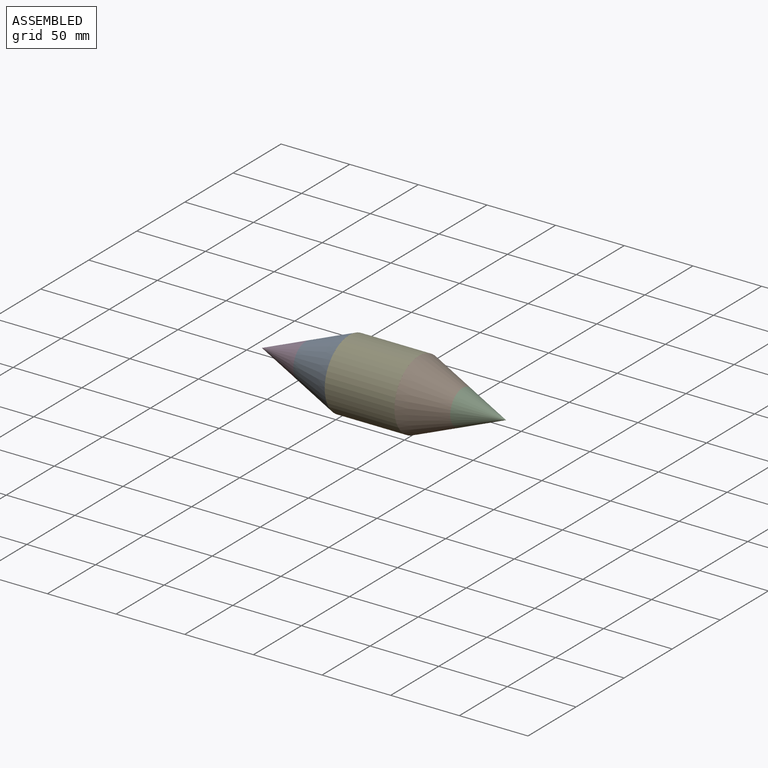
[diagram: assembled view]
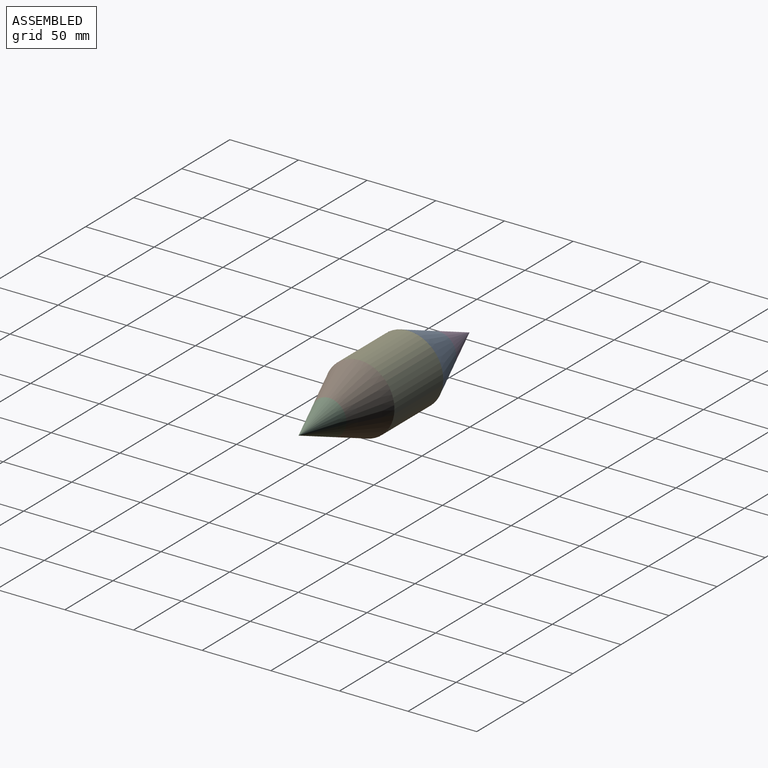
[diagram: assembled view, second angle]
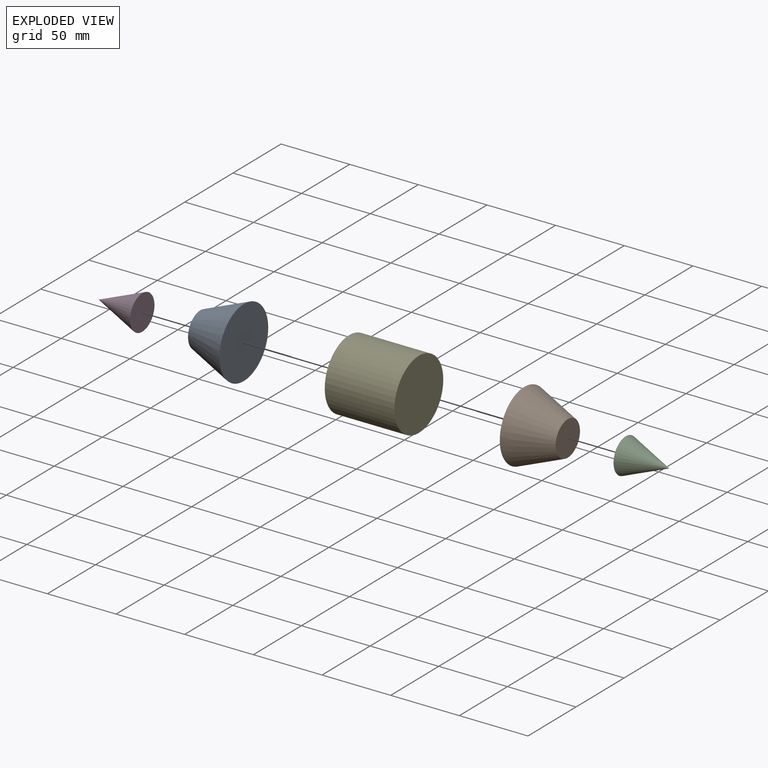
[diagram: exploded view]
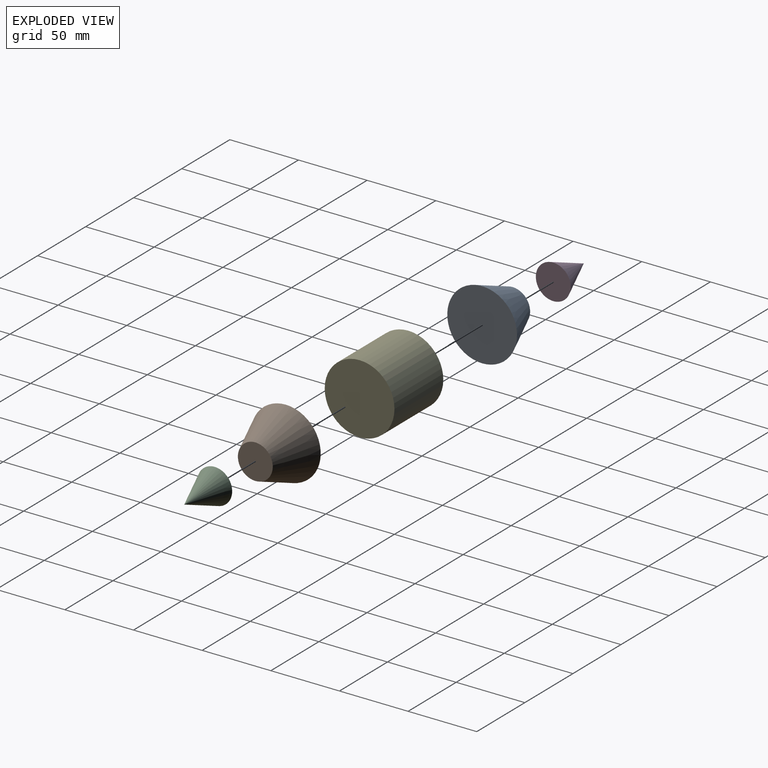
[diagram: exploded view, second angle]
ASSEMBLY  parts=5 mates=4
PART A: 3 faces, bbox 31.8x50.8x50.8 mm
  f0: plane 50.8x50.8mm, normal (1,0,0), area 2026.8mm2, adj f1
  f1: cone r=25.4mm half-angle=21.8deg, axis (1,0,0), area 4093.1mm2, adj f0,f2
  f2: plane 25.4x25.4mm, normal (-1,0,0), area 506.7mm2, adj f1
PART B: 3 faces, bbox 31.8x50.8x50.8 mm
  f0: plane 50.8x50.8mm, normal (-1,0,0), area 2026.8mm2, adj f2
  f1: plane 25.4x25.4mm, normal (1,0,0), area 506.7mm2, adj f2
  f2: cone r=25.4mm half-angle=21.8deg, axis (-1,0,0), area 4093.1mm2, adj f0,f1
PART C: 2 faces, bbox 31.8x25.4x25.4 mm
  f0: plane 25.4x25.4mm, normal (-1,0,0), area 506.7mm2, adj f1
  f1: cone r=0mm half-angle=21.8deg, axis (-1,0,0), area 1364.4mm2, adj f0
PART D: 2 faces, bbox 31.8x25.4x25.4 mm
  f0: cone r=0mm half-angle=21.8deg, axis (1,0,0), area 1364.4mm2, adj f1
  f1: plane 25.4x25.4mm, normal (1,0,0), area 506.7mm2, adj f0
PART E: 3 faces, bbox 50.8x50.8x50.8 mm
  f0: plane 50.8x50.8mm, normal (1,0,0), area 2026.8mm2, adj f1
  f1: cylinder r=25.4mm len=50.8mm, axis (1,0,0), area 8107.3mm2, adj f0,f2
  f2: plane 50.8x50.8mm, normal (-1,0,0), area 2026.8mm2, adj f1
PLACE A t=(9.23,8.02,-5.93)mm
PLACE B t=(4.87,8.02,-5.93)mm
PLACE C t=(-42.34,8.02,-5.93)mm
PLACE D t=(42.58,8.02,-5.93)mm
PLACE E t=(4.87,8.02,-5.93)mm
MATE fastened A.f1 <-> E.f1  axis (1,0,0) through (-45.93,8.02,-5.93)mm
MATE fastened E.f1 <-> B.f2  axis (1,0,0) through (4.87,8.02,-5.93)mm
MATE fastened C.f1 <-> B.f2  axis (-1,0,0) through (36.62,8.02,-5.93)mm
MATE fastened D.f0 <-> A.f1  axis (1,0,0) through (-77.68,8.02,-5.93)mm
